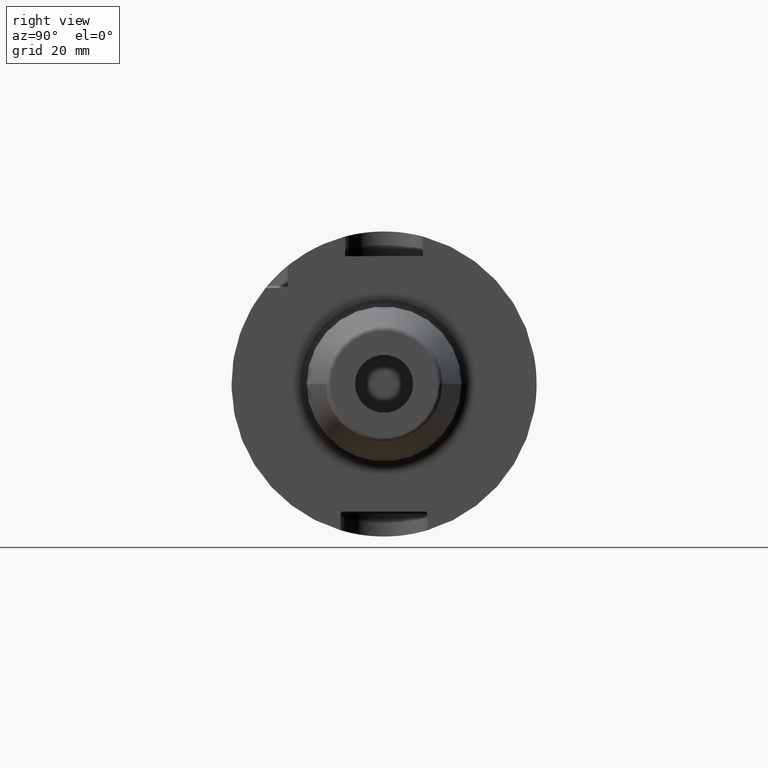
[diagram: clean part render]
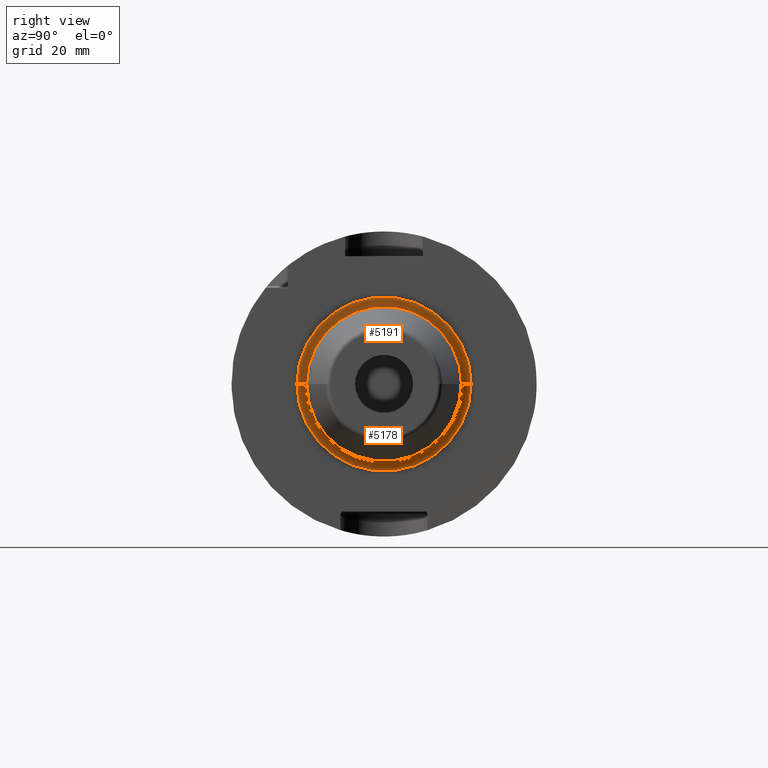
[diagram: same view with one multi-face feature highlighted, each face labeled with its STEP entity id]
A machine part, right view. The highlighted faces form ONE feature: a constant-radius fillet chain: 2 tangent blend faces with common blend radius 2 mm. The faces share edges in the B-rep.
Their STEP definitions:
[1] entity #5191 (Torus):
#1713=CARTESIAN_POINT('',(2.6E1,0.E0,0.E0));
#1714=DIRECTION('',(1.E0,0.E0,0.E0));
#1715=DIRECTION('',(0.E0,1.E0,0.E0));
#1716=AXIS2_PLACEMENT_3D('',#1713,#1714,#1715);
#1956=CARTESIAN_POINT('',(2.8E1,-1.8E1,1.662975313010E-13));
#1957=DIRECTION('',(0.E0,0.E0,-1.E0));
#1958=DIRECTION('',(-1.E0,1.776356839400E-14,0.E0));
#1959=AXIS2_PLACEMENT_3D('',#1956,#1957,#1958);
#1961=CARTESIAN_POINT('',(2.8E1,1.8E1,-1.688649220455E-13));
#1962=DIRECTION('',(0.E0,0.E0,1.E0));
#1963=DIRECTION('',(-1.E0,-1.953992523340E-14,0.E0));
#1964=AXIS2_PLACEMENT_3D('',#1961,#1962,#1963);
#1966=CARTESIAN_POINT('',(2.8E1,0.E0,0.E0));
#1967=DIRECTION('',(1.E0,0.E0,0.E0));
#1968=DIRECTION('',(0.E0,1.E0,0.E0));
#1969=AXIS2_PLACEMENT_3D('',#1966,#1967,#1968);
#3068=CARTESIAN_POINT('',(2.6E1,-1.8E1,0.E0));
#3069=CARTESIAN_POINT('',(2.6E1,1.8E1,0.E0));
#3070=VERTEX_POINT('',#3068);
#3071=VERTEX_POINT('',#3069);
#3072=CARTESIAN_POINT('',(2.8E1,-1.6E1,0.E0));
#3073=CARTESIAN_POINT('',(2.8E1,1.6E1,0.E0));
#3074=VERTEX_POINT('',#3072);
#3075=VERTEX_POINT('',#3073);
#5179=CARTESIAN_POINT('',(2.8E1,0.E0,0.E0));
#5180=DIRECTION('',(1.E0,0.E0,0.E0));
#5181=DIRECTION('',(0.E0,9.999884548084E-1,-4.805231507475E-3));
#5182=AXIS2_PLACEMENT_3D('',#5179,#5180,#5181);
#5183=TOROIDAL_SURFACE('',#5182,1.8E1,2.E0);
#5184=ORIENTED_EDGE('',*,*,#4873,.F.);
#5185=ORIENTED_EDGE('',*,*,#5174,.T.);
#5187=ORIENTED_EDGE('',*,*,#5186,.T.);
#5188=ORIENTED_EDGE('',*,*,#5170,.F.);
#5189=EDGE_LOOP('',(#5184,#5185,#5187,#5188));
#5190=FACE_OUTER_BOUND('',#5189,.F.);
#5191=ADVANCED_FACE('',(#5190),#5183,.F.);
#1717=CIRCLE('',#1716,1.8E1);
#1960=CIRCLE('',#1959,2.E0);
#1965=CIRCLE('',#1964,2.E0);
#1970=CIRCLE('',#1969,1.6E1);
#4873=EDGE_CURVE('',#3071,#3070,#1717,.T.);
#5170=EDGE_CURVE('',#3070,#3074,#1960,.T.);
#5174=EDGE_CURVE('',#3071,#3075,#1965,.T.);
#5186=EDGE_CURVE('',#3075,#3074,#1970,.T.);
[2] entity #5178 (Torus):
#1708=CARTESIAN_POINT('',(2.6E1,0.E0,0.E0));
#1709=DIRECTION('',(1.E0,0.E0,0.E0));
#1710=DIRECTION('',(0.E0,-1.E0,0.E0));
#1711=AXIS2_PLACEMENT_3D('',#1708,#1709,#1710);
#1956=CARTESIAN_POINT('',(2.8E1,-1.8E1,1.662975313010E-13));
#1957=DIRECTION('',(0.E0,0.E0,-1.E0));
#1958=DIRECTION('',(-1.E0,1.776356839400E-14,0.E0));
#1959=AXIS2_PLACEMENT_3D('',#1956,#1957,#1958);
#1961=CARTESIAN_POINT('',(2.8E1,1.8E1,-1.688649220455E-13));
#1962=DIRECTION('',(0.E0,0.E0,1.E0));
#1963=DIRECTION('',(-1.E0,-1.953992523340E-14,0.E0));
#1964=AXIS2_PLACEMENT_3D('',#1961,#1962,#1963);
#1976=CARTESIAN_POINT('',(2.8E1,0.E0,0.E0));
#1977=DIRECTION('',(1.E0,0.E0,0.E0));
#1978=DIRECTION('',(0.E0,-1.E0,0.E0));
#1979=AXIS2_PLACEMENT_3D('',#1976,#1977,#1978);
#3068=CARTESIAN_POINT('',(2.6E1,-1.8E1,0.E0));
#3069=CARTESIAN_POINT('',(2.6E1,1.8E1,0.E0));
#3070=VERTEX_POINT('',#3068);
#3071=VERTEX_POINT('',#3069);
#3072=CARTESIAN_POINT('',(2.8E1,-1.6E1,0.E0));
#3073=CARTESIAN_POINT('',(2.8E1,1.6E1,0.E0));
#3074=VERTEX_POINT('',#3072);
#3075=VERTEX_POINT('',#3073);
#5164=CARTESIAN_POINT('',(2.8E1,0.E0,0.E0));
#5165=DIRECTION('',(1.E0,0.E0,0.E0));
#5166=DIRECTION('',(0.E0,-9.999884548084E-1,4.805231507475E-3));
#5167=AXIS2_PLACEMENT_3D('',#5164,#5165,#5166);
#5168=TOROIDAL_SURFACE('',#5167,1.8E1,2.E0);
#5169=ORIENTED_EDGE('',*,*,#4871,.F.);
#5171=ORIENTED_EDGE('',*,*,#5170,.T.);
#5173=ORIENTED_EDGE('',*,*,#5172,.T.);
#5175=ORIENTED_EDGE('',*,*,#5174,.F.);
#5176=EDGE_LOOP('',(#5169,#5171,#5173,#5175));
#5177=FACE_OUTER_BOUND('',#5176,.F.);
#5178=ADVANCED_FACE('',(#5177),#5168,.F.);
#1712=CIRCLE('',#1711,1.8E1);
#1960=CIRCLE('',#1959,2.E0);
#1965=CIRCLE('',#1964,2.E0);
#1980=CIRCLE('',#1979,1.6E1);
#4871=EDGE_CURVE('',#3070,#3071,#1712,.T.);
#5170=EDGE_CURVE('',#3070,#3074,#1960,.T.);
#5172=EDGE_CURVE('',#3074,#3075,#1980,.T.);
#5174=EDGE_CURVE('',#3071,#3075,#1965,.T.);